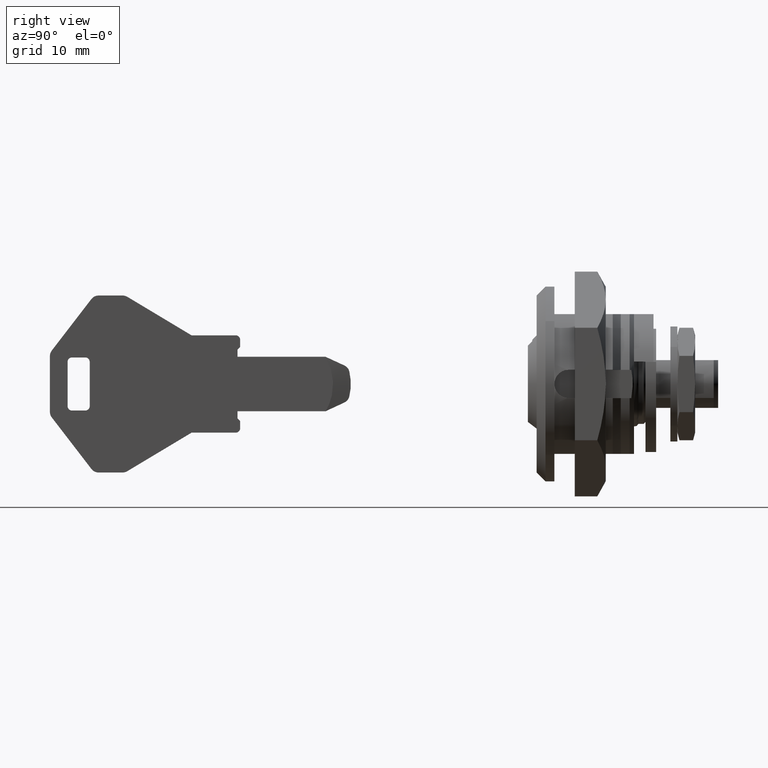
[diagram: clean part render]
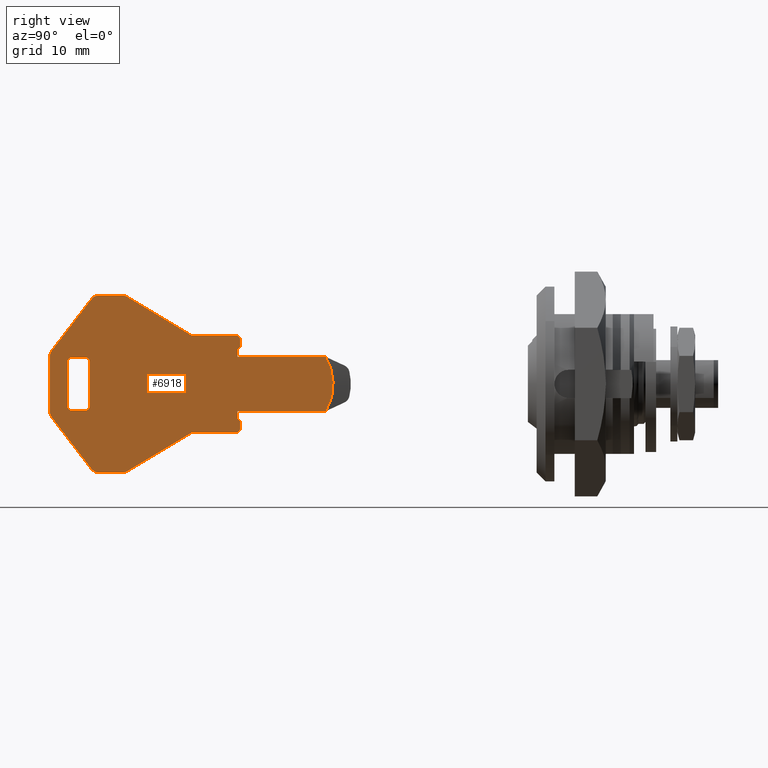
[diagram: same view with one face highlighted and labeled with its STEP entity id]
A machine part, right view. The second image highlights one B-rep face of the part: STEP entity #6918.
In plain terms, the highlighted face is a freeform B-spline surface patch.
Its self-contained STEP definition (entity closure, byte-faithful):
#5572=CARTESIAN_POINT('',(-25.847883875223399,-1.0,3.074992543324453));
#5573=VERTEX_POINT('',#5572);
#5581=CARTESIAN_POINT('',(-25.847883868967600,-1.0,-3.074992532842782));
#5582=VERTEX_POINT('',#5581);
#5583=CARTESIAN_POINT('',(-25.847883875223399,-1.0,3.074992543324453));
#5584=CARTESIAN_POINT('',(-25.623770344830191,-1.000000000000002,2.699600929714760));
#5585=CARTESIAN_POINT('',(-25.244022912608429,-0.999999999999998,1.868797122343855));
#5586=CARTESIAN_POINT('',(-24.992883304696289,-0.999999999999999,0.641263579091812));
#5587=CARTESIAN_POINT('',(-24.992924856616661,-1.000000000000002,-0.641265565454891));
#5588=CARTESIAN_POINT('',(-25.244000796608422,-0.999999999999999,-1.868793214626514));
#5589=CARTESIAN_POINT('',(-25.623769153389020,-1.000000000000002,-2.699605782187088));
#5590=CARTESIAN_POINT('',(-25.847883868967600,-1.0,-3.074992532842782));
#5591=B_SPLINE_CURVE_WITH_KNOTS('',3,(#5583,#5584,#5585,#5586,#5587,#5588,#5589,#5590),.UNSPECIFIED.,.F.,.U.,(4,1,1,1,1,4),(0.000000067526370,1.311614084011364,2.724143038959136,3.733036818253185,5.145565773201012,6.457179789686099),.UNSPECIFIED.);
#5592=EDGE_CURVE('',#5573,#5582,#5591,.T.);
#5729=CARTESIAN_POINT('',(-53.0,-1.0,-3.0));
#5730=VERTEX_POINT('',#5729);
#5731=CARTESIAN_POINT('',(-52.500000000000000,-1.0,-2.500000000000000));
#5732=VERTEX_POINT('',#5731);
#5733=CARTESIAN_POINT('',(-53.0,-1.0,-3.0));
#5734=CARTESIAN_POINT('',(-52.893563973840287,-1.0,-3.000448356978882));
#5735=CARTESIAN_POINT('',(-52.705875043830503,-1.000000000000001,-2.937680958333798));
#5736=CARTESIAN_POINT('',(-52.534934124014782,-1.000000000000000,-2.729013701621881));
#5737=CARTESIAN_POINT('',(-52.499897963468399,-1.000000000000000,-2.573644846047045));
#5738=CARTESIAN_POINT('',(-52.500000000000000,-1.0,-2.500000000000000));
#5739=B_SPLINE_CURVE_WITH_KNOTS('',3,(#5733,#5734,#5735,#5736,#5737,#5738),.UNSPECIFIED.,.F.,.U.,(4,1,1,4),(0.000000517784976,0.319126103026183,0.564557530775151,0.785476941782644),.UNSPECIFIED.);
#5740=EDGE_CURVE('',#5730,#5732,#5739,.T.);
#5782=CARTESIAN_POINT('',(-56.792700000000004,-1.0,3.770000000000000));
#5783=VERTEX_POINT('',#5782);
#5784=CARTESIAN_POINT('',(-57.0,-1.0,3.160000000000110));
#5785=VERTEX_POINT('',#5784);
#5786=CARTESIAN_POINT('',(-56.792700000000004,-1.0,3.770000000000000));
#5787=CARTESIAN_POINT('',(-56.867793810154048,-1.000000000000001,3.672571454509981));
#5788=CARTESIAN_POINT('',(-56.968531734155178,-0.999999999999998,3.474320425929403));
#5789=CARTESIAN_POINT('',(-57.000085178653791,-1.000000000000002,3.255666758213955));
#5790=CARTESIAN_POINT('',(-57.0,-1.0,3.160000000000110));
#5791=B_SPLINE_CURVE_WITH_KNOTS('',3,(#5786,#5787,#5788,#5789,#5790),.UNSPECIFIED.,.F.,.U.,(4,1,4),(0.000000069455389,0.369000343295206,0.656014701211759),.UNSPECIFIED.);
#5792=EDGE_CURVE('',#5783,#5785,#5791,.T.);
#5824=CARTESIAN_POINT('',(-57.0,-1.0,-3.159999999999910));
#5825=VERTEX_POINT('',#5824);
#5826=CARTESIAN_POINT('',(-57.0,-1.0,-3.159999999999910));
#5827=CARTESIAN_POINT('',(-57.0,-1.0,3.160000000000110));
#5828=QUASI_UNIFORM_CURVE('',1,(#5826,#5827),.UNSPECIFIED.,.F.,.U.);
#5829=EDGE_CURVE('',#5825,#5785,#5828,.T.);
#5861=CARTESIAN_POINT('',(-56.808976489591103,-1.0,-3.747840998305585));
#5862=VERTEX_POINT('',#5861);
#5863=CARTESIAN_POINT('',(-57.0,-1.0,-3.159999999999910));
#5864=CARTESIAN_POINT('',(-57.000423038477230,-1.0,-3.369574157118227));
#5865=CARTESIAN_POINT('',(-56.932702340073050,-1.0,-3.578616462965539));
#5866=CARTESIAN_POINT('',(-56.808976489591103,-1.0,-3.747840998305585));
#5867=B_SPLINE_CURVE_WITH_KNOTS('',3,(#5863,#5864,#5865,#5866),.UNSPECIFIED.,.F.,.U.,(4,4),(0.000000055987925,0.628427797881139),.UNSPECIFIED.);
#5868=EDGE_CURVE('',#5825,#5862,#5867,.T.);
#5893=CARTESIAN_POINT('',(-52.316576489591100,-1.0,-9.587840998305600));
#5894=VERTEX_POINT('',#5893);
#5895=CARTESIAN_POINT('',(-52.316576489591100,-1.0,-9.587840998305600));
#5896=CARTESIAN_POINT('',(-56.808976489591103,-1.0,-3.747840998305585));
#5897=QUASI_UNIFORM_CURVE('',1,(#5895,#5896),.UNSPECIFIED.,.F.,.U.);
#5898=EDGE_CURVE('',#5894,#5862,#5897,.T.);
#5930=CARTESIAN_POINT('',(-51.507599999999996,-1.0,-10.0));
#5931=VERTEX_POINT('',#5930);
#5932=CARTESIAN_POINT('',(-52.316576489591100,-1.0,-9.587840998305600));
#5933=CARTESIAN_POINT('',(-52.230152871089672,-1.0,-9.707115948489735));
#5934=CARTESIAN_POINT('',(-51.988268864952822,-1.000000000000000,-9.919391955854223));
#5935=CARTESIAN_POINT('',(-51.674545814635053,-1.000000000000001,-10.000376744986159));
#5936=CARTESIAN_POINT('',(-51.507599999999996,-1.0,-10.0));
#5937=B_SPLINE_CURVE_WITH_KNOTS('',3,(#5932,#5933,#5934,#5935,#5936),.UNSPECIFIED.,.F.,.U.,(4,1,4),(0.000000138676287,0.441797206090251,0.942442933922136),.UNSPECIFIED.);
#5938=EDGE_CURVE('',#5894,#5931,#5937,.T.);
#5964=CARTESIAN_POINT('',(-48.777000000000001,-1.0,-10.0));
#5965=VERTEX_POINT('',#5964);
#5966=CARTESIAN_POINT('',(-48.777000000000001,-1.0,-10.0));
#5967=CARTESIAN_POINT('',(-51.507599999999996,-1.0,-10.0));
#5968=QUASI_UNIFORM_CURVE('',1,(#5966,#5967),.UNSPECIFIED.,.F.,.U.);
#5969=EDGE_CURVE('',#5965,#5931,#5968,.T.);
#6001=CARTESIAN_POINT('',(-48.237893170505700,-1.0,-9.842237393133500));
#6002=VERTEX_POINT('',#6001);
#6003=CARTESIAN_POINT('',(-48.777000000000001,-1.0,-10.0));
#6004=CARTESIAN_POINT('',(-48.587139180139090,-1.000000000000002,-10.000286910273610));
#6005=CARTESIAN_POINT('',(-48.397609396782059,-0.999999999999993,-9.944958520507473));
#6006=CARTESIAN_POINT('',(-48.237893170505700,-1.0,-9.842237393133500));
#6007=B_SPLINE_CURVE_WITH_KNOTS('',3,(#6003,#6004,#6005,#6006),.UNSPECIFIED.,.F.,.U.,(4,4),(0.000000057276160,0.569406302539943),.UNSPECIFIED.);
#6008=EDGE_CURVE('',#5965,#6002,#6007,.T.);
#6033=CARTESIAN_POINT('',(-41.000100000000003,-1.0,-5.500000000000000));
#6034=VERTEX_POINT('',#6033);
#6035=CARTESIAN_POINT('',(-41.000100000000003,-1.0,-5.500000000000000));
#6036=CARTESIAN_POINT('',(-48.237893170505700,-1.0,-9.842237393133500));
#6037=QUASI_UNIFORM_CURVE('',1,(#6035,#6036),.UNSPECIFIED.,.F.,.U.);
#6038=EDGE_CURVE('',#6034,#6002,#6037,.T.);
#6061=CARTESIAN_POINT('',(-36.0,-1.0,-5.500000000000000));
#6062=VERTEX_POINT('',#6061);
#6063=CARTESIAN_POINT('',(-36.0,-1.0,-5.500000000000000));
#6064=CARTESIAN_POINT('',(-41.000100000000003,-1.0,-5.500000000000000));
#6065=QUASI_UNIFORM_CURVE('',1,(#6063,#6064),.UNSPECIFIED.,.F.,.U.);
#6066=EDGE_CURVE('',#6062,#6034,#6065,.T.);
#6098=CARTESIAN_POINT('',(-35.500000000000000,-1.0,-5.0));
#6099=VERTEX_POINT('',#6098);
#6100=CARTESIAN_POINT('',(-36.0,-1.0,-5.500000000000000));
#6101=CARTESIAN_POINT('',(-35.893564686609317,-1.0,-5.500449179461722));
#6102=CARTESIAN_POINT('',(-35.705873791437973,-1.0,-5.437678325974515));
#6103=CARTESIAN_POINT('',(-35.534935553289202,-1.0,-5.229017225960448));
#6104=CARTESIAN_POINT('',(-35.499897201556998,-1.000000000000000,-5.073642344768728));
#6105=CARTESIAN_POINT('',(-35.500000000000000,-1.0,-5.0));
#6106=B_SPLINE_CURVE_WITH_KNOTS('',3,(#6100,#6101,#6102,#6103,#6104,#6105),.UNSPECIFIED.,.F.,.U.,(4,1,1,4),(0.000000517785322,0.319126103026187,0.564557530775117,0.785476941782643),.UNSPECIFIED.);
#6107=EDGE_CURVE('',#6062,#6099,#6106,.T.);
#6134=CARTESIAN_POINT('',(-35.500000000000000,-1.0,-4.174999999999900));
#6135=VERTEX_POINT('',#6134);
#6136=CARTESIAN_POINT('',(-35.500000000000000,-1.0,-4.174999999999900));
#6137=CARTESIAN_POINT('',(-35.500000000000000,-1.0,-5.0));
#6138=QUASI_UNIFORM_CURVE('',1,(#6136,#6137),.UNSPECIFIED.,.F.,.U.);
#6139=EDGE_CURVE('',#6135,#6099,#6138,.T.);
#6162=CARTESIAN_POINT('',(-35.799999999999997,-1.0,-3.875000000000000));
#6163=VERTEX_POINT('',#6162);
#6164=CARTESIAN_POINT('',(-35.799999999999997,-1.0,-3.875000000000000));
#6165=CARTESIAN_POINT('',(-35.500000000000000,-1.0,-4.174999999999900));
#6166=QUASI_UNIFORM_CURVE('',1,(#6164,#6165),.UNSPECIFIED.,.F.,.U.);
#6167=EDGE_CURVE('',#6163,#6135,#6166,.T.);
#6190=CARTESIAN_POINT('',(-35.799999999999997,-1.0,-3.074999999999905));
#6191=VERTEX_POINT('',#6190);
#6192=CARTESIAN_POINT('',(-35.799999999999997,-1.0,-3.074999999999905));
#6193=CARTESIAN_POINT('',(-35.799999999999997,-1.0,-3.875000000000000));
#6194=QUASI_UNIFORM_CURVE('',1,(#6192,#6193),.UNSPECIFIED.,.F.,.U.);
#6195=EDGE_CURVE('',#6191,#6163,#6194,.T.);
#6218=CARTESIAN_POINT('',(-25.847883868967600,-1.0,-3.074992532842782));
#6219=CARTESIAN_POINT('',(-35.799999999999997,-1.0,-3.074999999999905));
#6220=QUASI_UNIFORM_CURVE('',1,(#6218,#6219),.UNSPECIFIED.,.F.,.U.);
#6221=EDGE_CURVE('',#5582,#6191,#6220,.T.);
#6242=CARTESIAN_POINT('',(-35.799999999999997,-1.0,3.075000000000105));
#6243=VERTEX_POINT('',#6242);
#6244=CARTESIAN_POINT('',(-35.799999999999997,-1.0,3.075000000000105));
#6245=CARTESIAN_POINT('',(-25.847883875223399,-1.0,3.074992543324453));
#6246=QUASI_UNIFORM_CURVE('',1,(#6244,#6245),.UNSPECIFIED.,.F.,.U.);
#6247=EDGE_CURVE('',#6243,#5573,#6246,.T.);
#6274=CARTESIAN_POINT('',(-35.799999999999997,-1.0,3.875000000000085));
#6275=VERTEX_POINT('',#6274);
#6276=CARTESIAN_POINT('',(-35.799999999999997,-1.0,3.875000000000085));
#6277=CARTESIAN_POINT('',(-35.799999999999997,-1.0,3.075000000000105));
#6278=QUASI_UNIFORM_CURVE('',1,(#6276,#6277),.UNSPECIFIED.,.F.,.U.);
#6279=EDGE_CURVE('',#6275,#6243,#6278,.T.);
#6302=CARTESIAN_POINT('',(-35.500000000000000,-1.0,4.175000000000095));
#6303=VERTEX_POINT('',#6302);
#6304=CARTESIAN_POINT('',(-35.500000000000000,-1.0,4.175000000000095));
#6305=CARTESIAN_POINT('',(-35.799999999999997,-1.0,3.875000000000085));
#6306=QUASI_UNIFORM_CURVE('',1,(#6304,#6305),.UNSPECIFIED.,.F.,.U.);
#6307=EDGE_CURVE('',#6303,#6275,#6306,.T.);
#6330=CARTESIAN_POINT('',(-35.500000000000000,-1.0,5.0));
#6331=VERTEX_POINT('',#6330);
#6332=CARTESIAN_POINT('',(-35.500000000000000,-1.0,5.0));
#6333=CARTESIAN_POINT('',(-35.500000000000000,-1.0,4.175000000000095));
#6334=QUASI_UNIFORM_CURVE('',1,(#6332,#6333),.UNSPECIFIED.,.F.,.U.);
#6335=EDGE_CURVE('',#6331,#6303,#6334,.T.);
#6367=CARTESIAN_POINT('',(-36.0,-1.0,5.500000000000000));
#6368=VERTEX_POINT('',#6367);
#6369=CARTESIAN_POINT('',(-35.500000000000000,-1.0,5.0));
#6370=CARTESIAN_POINT('',(-35.499506645204782,-1.000000000000002,5.106527584016056));
#6371=CARTESIAN_POINT('',(-35.554248258303737,-1.000000000000000,5.269417369598910));
#6372=CARTESIAN_POINT('',(-35.746751271019399,-1.000000000000001,5.452714241727068));
#6373=CARTESIAN_POINT('',(-35.901733990129152,-1.0,5.500337951620416));
#6374=CARTESIAN_POINT('',(-36.0,-1.0,5.500000000000000));
#6375=B_SPLINE_CURVE_WITH_KNOTS('',3,(#6369,#6370,#6371,#6372,#6373,#6374),.UNSPECIFIED.,.F.,.U.,(4,1,1,4),(0.000000517784559,0.319126103026186,0.490920261222101,0.785476941782638),.UNSPECIFIED.);
#6376=EDGE_CURVE('',#6331,#6368,#6375,.T.);
#6403=CARTESIAN_POINT('',(-41.0,-1.0,5.500000000000000));
#6404=VERTEX_POINT('',#6403);
#6405=CARTESIAN_POINT('',(-41.0,-1.0,5.500000000000000));
#6406=CARTESIAN_POINT('',(-36.0,-1.0,5.500000000000000));
#6407=QUASI_UNIFORM_CURVE('',1,(#6405,#6406),.UNSPECIFIED.,.F.,.U.);
#6408=EDGE_CURVE('',#6404,#6368,#6407,.T.);
#6431=CARTESIAN_POINT('',(-48.262499971429300,-1.0,9.857999982855640));
#6432=VERTEX_POINT('',#6431);
#6433=CARTESIAN_POINT('',(-48.262499971429300,-1.0,9.857999982855640));
#6434=CARTESIAN_POINT('',(-41.0,-1.0,5.500000000000000));
#6435=QUASI_UNIFORM_CURVE('',1,(#6433,#6434),.UNSPECIFIED.,.F.,.U.);
#6436=EDGE_CURVE('',#6432,#6404,#6435,.T.);
#6468=CARTESIAN_POINT('',(-48.777000000000001,-1.0,10.0));
#6469=VERTEX_POINT('',#6468);
#6470=CARTESIAN_POINT('',(-48.262499971429300,-1.0,9.857999982855640));
#6471=CARTESIAN_POINT('',(-48.416835960284473,-1.000000000000000,9.951007744418567));
#6472=CARTESIAN_POINT('',(-48.596834113580108,-1.000000000000001,10.000575588204830));
#6473=CARTESIAN_POINT('',(-48.777000000000001,-1.0,10.0));
#6474=B_SPLINE_CURVE_WITH_KNOTS('',3,(#6470,#6471,#6472,#6473),.UNSPECIFIED.,.F.,.U.,(4,4),(0.000000044765398,0.540360182457673),.UNSPECIFIED.);
#6475=EDGE_CURVE('',#6432,#6469,#6474,.T.);
#6500=CARTESIAN_POINT('',(-51.507599999999996,-1.0,9.999999999999830));
#6501=VERTEX_POINT('',#6500);
#6502=CARTESIAN_POINT('',(-51.507599999999996,-1.0,9.999999999999830));
#6503=CARTESIAN_POINT('',(-48.777000000000001,-1.0,10.0));
#6504=QUASI_UNIFORM_CURVE('',1,(#6502,#6503),.UNSPECIFIED.,.F.,.U.);
#6505=EDGE_CURVE('',#6501,#6469,#6504,.T.);
#6537=CARTESIAN_POINT('',(-52.300300000000000,-1.0,9.610000000000001));
#6538=VERTEX_POINT('',#6537);
#6539=CARTESIAN_POINT('',(-51.507599999999996,-1.0,9.999999999999830));
#6540=CARTESIAN_POINT('',(-51.641065959811492,-1.000000000000000,10.000209665955349));
#6541=CARTESIAN_POINT('',(-51.946037997565263,-0.999999999999999,9.938269756563873));
#6542=CARTESIAN_POINT('',(-52.195973587568410,-1.000000000000001,9.746332147199968));
#6543=CARTESIAN_POINT('',(-52.300300000000000,-1.0,9.610000000000001));
#6544=B_SPLINE_CURVE_WITH_KNOTS('',3,(#6539,#6540,#6541,#6542,#6543),.UNSPECIFIED.,.F.,.U.,(4,1,4),(0.000000120127950,0.400379676361573,0.915115822325391),.UNSPECIFIED.);
#6545=EDGE_CURVE('',#6501,#6538,#6544,.T.);
#6571=CARTESIAN_POINT('',(-56.792700000000004,-1.0,3.770000000000000));
#6572=CARTESIAN_POINT('',(-52.300300000000000,-1.0,9.610000000000001));
#6573=QUASI_UNIFORM_CURVE('',1,(#6571,#6572),.UNSPECIFIED.,.F.,.U.);
#6574=EDGE_CURVE('',#5783,#6538,#6573,.T.);
#6591=CARTESIAN_POINT('',(-54.500000000000000,-1.0,-3.0));
#6592=VERTEX_POINT('',#6591);
#6593=CARTESIAN_POINT('',(-54.500000000000000,-1.0,-3.0));
#6594=CARTESIAN_POINT('',(-53.0,-1.0,-3.0));
#6595=QUASI_UNIFORM_CURVE('',1,(#6593,#6594),.UNSPECIFIED.,.F.,.U.);
#6596=EDGE_CURVE('',#6592,#5730,#6595,.T.);
#6628=CARTESIAN_POINT('',(-55.0,-1.0,-2.500000000000000));
#6629=VERTEX_POINT('',#6628);
#6630=CARTESIAN_POINT('',(-55.0,-1.0,-2.500000000000000));
#6631=CARTESIAN_POINT('',(-55.000118756064523,-1.000000000000000,-2.573654510106294));
#6632=CARTESIAN_POINT('',(-54.972372725434049,-0.999999999999999,-2.696277652483734));
#6633=CARTESIAN_POINT('',(-54.880445024747033,-1.000000000000002,-2.833771969621151));
#6634=CARTESIAN_POINT('',(-54.736932034707962,-0.999999999999994,-2.957757468580678));
#6635=CARTESIAN_POINT('',(-54.598268846999709,-1.000000000000003,-3.000320280791247));
#6636=CARTESIAN_POINT('',(-54.500000000000000,-1.0,-3.0));
#6637=B_SPLINE_CURVE_WITH_KNOTS('',3,(#6630,#6631,#6632,#6633,#6634,#6635,#6636),.UNSPECIFIED.,.F.,.U.,(4,1,1,1,4),(0.000000517785174,0.220919928792566,0.368226022245699,0.490920261222124,0.785476941782635),.UNSPECIFIED.);
#6638=EDGE_CURVE('',#6629,#6592,#6637,.T.);
#6666=CARTESIAN_POINT('',(-55.0,-1.0,2.500000000000085));
#6667=VERTEX_POINT('',#6666);
#6668=CARTESIAN_POINT('',(-55.0,-1.0,2.500000000000085));
#6669=CARTESIAN_POINT('',(-55.0,-1.0,-2.500000000000000));
#6670=QUASI_UNIFORM_CURVE('',1,(#6668,#6669),.UNSPECIFIED.,.F.,.U.);
#6671=EDGE_CURVE('',#6667,#6629,#6670,.T.);
#6703=CARTESIAN_POINT('',(-54.500000000000000,-1.0,3.0));
#6704=VERTEX_POINT('',#6703);
#6705=CARTESIAN_POINT('',(-54.500000000000000,-1.0,3.0));
#6706=CARTESIAN_POINT('',(-54.557264075537063,-1.0,3.000026786032692));
#6707=CARTESIAN_POINT('',(-54.679985485365059,-1.000000000000000,2.978717109270432));
#6708=CARTESIAN_POINT('',(-54.858926080913257,-1.000000000000001,2.871601730547053));
#6709=CARTESIAN_POINT('',(-54.975977395978397,-1.0,2.696393774004996));
#6710=CARTESIAN_POINT('',(-55.000009167766009,-1.000000000000000,2.557253659953194));
#6711=CARTESIAN_POINT('',(-55.0,-1.0,2.500000000000085));
#6712=B_SPLINE_CURVE_WITH_KNOTS('',3,(#6705,#6706,#6707,#6708,#6709,#6710,#6711),.UNSPECIFIED.,.F.,.U.,(4,1,1,1,4),(0.000000517784027,0.171819318775877,0.368226022245322,0.613658140791092,0.785476941782530),.UNSPECIFIED.);
#6713=EDGE_CURVE('',#6704,#6667,#6712,.T.);
#6741=CARTESIAN_POINT('',(-53.0,-1.0,3.0));
#6742=VERTEX_POINT('',#6741);
#6743=CARTESIAN_POINT('',(-53.0,-1.0,3.0));
#6744=CARTESIAN_POINT('',(-54.500000000000000,-1.0,3.0));
#6745=QUASI_UNIFORM_CURVE('',1,(#6743,#6744),.UNSPECIFIED.,.F.,.U.);
#6746=EDGE_CURVE('',#6742,#6704,#6745,.T.);
#6778=CARTESIAN_POINT('',(-52.500000000000000,-1.0,2.500000000000085));
#6779=VERTEX_POINT('',#6778);
#6780=CARTESIAN_POINT('',(-52.500000000000000,-1.0,2.500000000000085));
#6781=CARTESIAN_POINT('',(-52.499974007127634,-1.0,2.557265567776817));
#6782=CARTESIAN_POINT('',(-52.521270012127083,-1.0,2.679997715446063));
#6783=CARTESIAN_POINT('',(-52.615599589542633,-1.000000000000000,2.837359779053676));
#6784=CARTESIAN_POINT('',(-52.779254946610969,-1.000000000000002,2.965077705453714));
#6785=CARTESIAN_POINT('',(-52.918153582042130,-0.999999999999997,3.000159260765390));
#6786=CARTESIAN_POINT('',(-53.0,-1.0,3.0));
#6787=B_SPLINE_CURVE_WITH_KNOTS('',3,(#6780,#6781,#6782,#6783,#6784,#6785,#6786),.UNSPECIFIED.,.F.,.U.,(4,1,1,1,4),(0.000000517784917,0.171819318776301,0.368226022245478,0.540001830714947,0.785476941782526),.UNSPECIFIED.);
#6788=EDGE_CURVE('',#6779,#6742,#6787,.T.);
#6816=CARTESIAN_POINT('',(-52.500000000000000,-1.0,-2.500000000000000));
#6817=CARTESIAN_POINT('',(-52.500000000000000,-1.0,2.500000000000085));
#6818=QUASI_UNIFORM_CURVE('',1,(#6816,#6817),.UNSPECIFIED.,.F.,.U.);
#6819=EDGE_CURVE('',#5732,#6779,#6818,.T.);
#6875=CARTESIAN_POINT('',(-58.598401190322690,-1.0,10.998999961236120));
#6876=CARTESIAN_POINT('',(-23.401572879401609,-1.0,10.998999961236120));
#6877=CARTESIAN_POINT('',(-58.598401190322690,-1.0,-10.999000497677921));
#6878=CARTESIAN_POINT('',(-23.401572879401609,-1.0,-10.999000497677921));
#6879=B_SPLINE_SURFACE_WITH_KNOTS('',1,1,((#6875,#6877),(#6876,#6878)),.UNSPECIFIED.,.F.,.F.,.U.,(2,2),(2,2),(0.0,35.196828310921077),(0.0,21.998000458914039),.UNSPECIFIED.);
#6880=ORIENTED_EDGE('',*,*,#5592,.F.);
#6881=ORIENTED_EDGE('',*,*,#6247,.F.);
#6882=ORIENTED_EDGE('',*,*,#6279,.F.);
#6883=ORIENTED_EDGE('',*,*,#6307,.F.);
#6884=ORIENTED_EDGE('',*,*,#6335,.F.);
#6885=ORIENTED_EDGE('',*,*,#6376,.T.);
#6886=ORIENTED_EDGE('',*,*,#6408,.F.);
#6887=ORIENTED_EDGE('',*,*,#6436,.F.);
#6888=ORIENTED_EDGE('',*,*,#6475,.T.);
#6889=ORIENTED_EDGE('',*,*,#6505,.F.);
#6890=ORIENTED_EDGE('',*,*,#6545,.T.);
#6891=ORIENTED_EDGE('',*,*,#6574,.F.);
#6892=ORIENTED_EDGE('',*,*,#5792,.T.);
#6893=ORIENTED_EDGE('',*,*,#5829,.F.);
#6894=ORIENTED_EDGE('',*,*,#5868,.T.);
#6895=ORIENTED_EDGE('',*,*,#5898,.F.);
#6896=ORIENTED_EDGE('',*,*,#5938,.T.);
#6897=ORIENTED_EDGE('',*,*,#5969,.F.);
#6898=ORIENTED_EDGE('',*,*,#6008,.T.);
#6899=ORIENTED_EDGE('',*,*,#6038,.F.);
#6900=ORIENTED_EDGE('',*,*,#6066,.F.);
#6901=ORIENTED_EDGE('',*,*,#6107,.T.);
#6902=ORIENTED_EDGE('',*,*,#6139,.F.);
#6903=ORIENTED_EDGE('',*,*,#6167,.F.);
#6904=ORIENTED_EDGE('',*,*,#6195,.F.);
#6905=ORIENTED_EDGE('',*,*,#6221,.F.);
#6906=EDGE_LOOP('',(#6880,#6881,#6882,#6883,#6884,#6885,#6886,#6887,#6888,#6889,#6890,#6891,#6892,#6893,#6894,#6895,#6896,#6897,#6898,#6899,#6900,#6901,#6902,#6903,#6904,#6905));
#6907=FACE_OUTER_BOUND('',#6906,.T.);
#6908=ORIENTED_EDGE('',*,*,#6819,.F.);
#6909=ORIENTED_EDGE('',*,*,#5740,.F.);
#6910=ORIENTED_EDGE('',*,*,#6596,.F.);
#6911=ORIENTED_EDGE('',*,*,#6638,.F.);
#6912=ORIENTED_EDGE('',*,*,#6671,.F.);
#6913=ORIENTED_EDGE('',*,*,#6713,.F.);
#6914=ORIENTED_EDGE('',*,*,#6746,.F.);
#6915=ORIENTED_EDGE('',*,*,#6788,.F.);
#6916=EDGE_LOOP('',(#6908,#6909,#6910,#6911,#6912,#6913,#6914,#6915));
#6917=FACE_BOUND('',#6916,.T.);
#6918=ADVANCED_FACE('',(#6907,#6917),#6879,.F.);